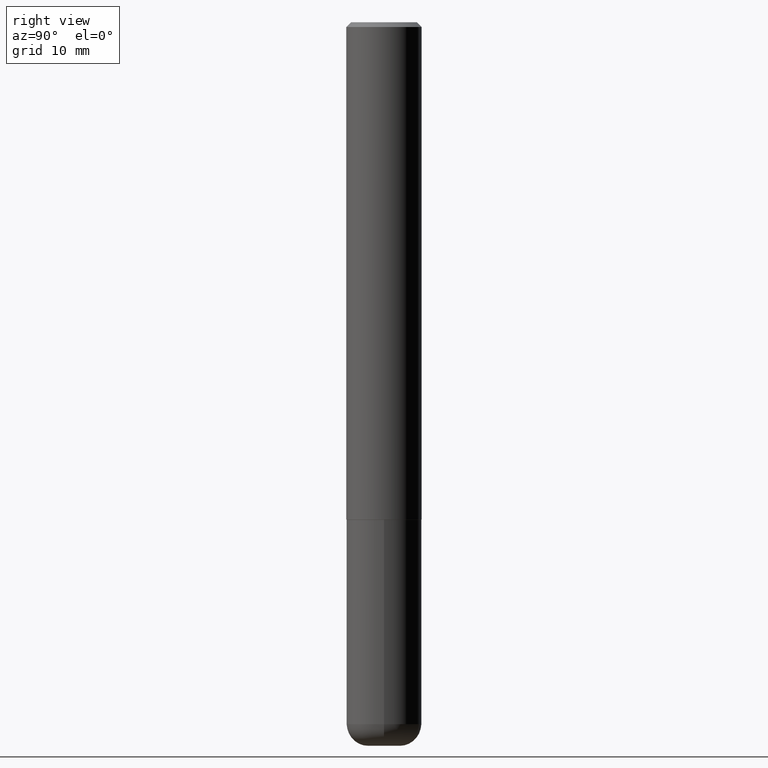
[diagram: clean part render]
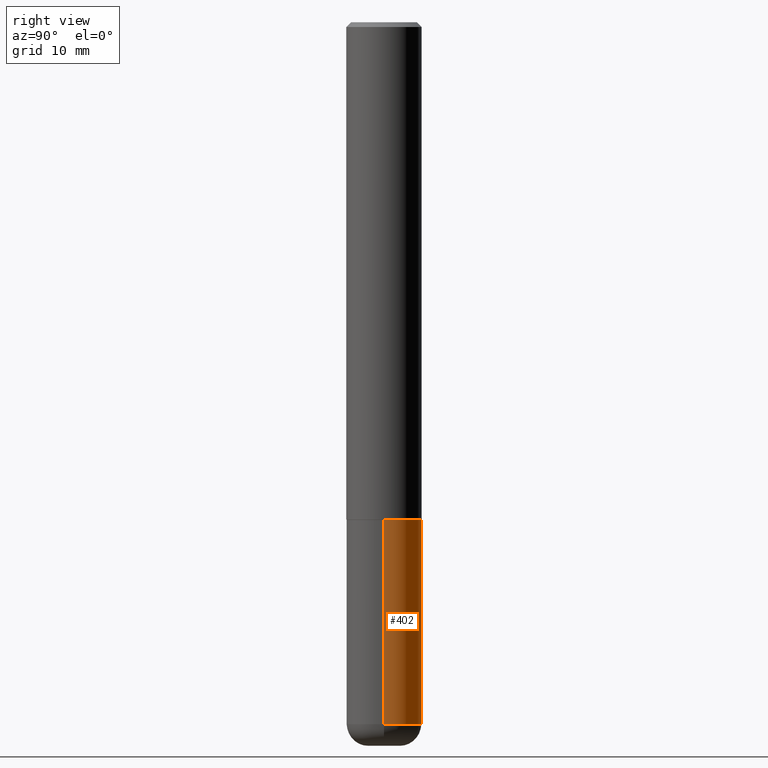
[diagram: same view with one face highlighted and labeled with its STEP entity id]
A machine part, right view. The second image highlights one B-rep face of the part: STEP entity #402.
In plain terms, the highlighted cylindrical surface (partial cylindrical patch) has radius 3.9688 mm, axis along (-0, 0, 1).
Its self-contained STEP definition (entity closure, byte-faithful):
#16 = DIRECTION ( 'NONE',  ( 1.000000000000000000, -6.982962677686269077E-15, 0.000000000000000000 ) ) ;
#17 = LINE ( 'NONE', #365, #217 ) ;
#50 = AXIS2_PLACEMENT_3D ( 'NONE', #212, #321, #361 ) ;
#51 = CARTESIAN_POINT ( 'NONE',  ( 0.1562499999999998335, -1.125129861442203147E-14, -2.910000000000000586 ) ) ;
#55 = CARTESIAN_POINT ( 'NONE',  ( 5.043779412756844791E-29, -7.201180261363988578E-15, -2.062500000000000000 ) ) ;
#60 = LINE ( 'NONE', #268, #128 ) ;
#63 = EDGE_CURVE ( 'NONE', #366, #106, #17, .T. ) ;
#65 = ORIENTED_EDGE ( 'NONE', *, *, #63, .F. ) ;
#68 = AXIS2_PLACEMENT_3D ( 'NONE', #55, #171, #16 ) ;
#90 = VERTEX_POINT ( 'NONE', #122 ) ;
#106 = VERTEX_POINT ( 'NONE', #146 ) ;
#122 = CARTESIAN_POINT ( 'NONE',  ( -0.1562499999999998335, -9.049987671408398127E-15, -2.910000000000000586 ) ) ;
#128 = VECTOR ( 'NONE', #292, 39.37007874015748143 ) ;
#146 = CARTESIAN_POINT ( 'NONE',  ( 0.1562500000000000000, -8.292268179752468540E-15, -2.062500000000000000 ) ) ;
#165 = AXIS2_PLACEMENT_3D ( 'NONE', #244, #372, #364 ) ;
#169 = EDGE_CURVE ( 'NONE', #366, #90, #409, .T. ) ;
#171 = DIRECTION ( 'NONE',  ( -2.445468806185136597E-29, 3.491481338843145583E-15, 1.000000000000000000 ) ) ;
#212 = CARTESIAN_POINT ( 'NONE',  ( 7.116314225998749245E-29, -1.016021069603355467E-14, -2.910000000000000586 ) ) ;
#217 = VECTOR ( 'NONE', #295, 39.37007874015748143 ) ;
#244 = CARTESIAN_POINT ( 'NONE',  ( 0.000000000000000000, 0.000000000000000000, 0.000000000000000000 ) ) ;
#267 = ORIENTED_EDGE ( 'NONE', *, *, #356, .T. ) ;
#268 = CARTESIAN_POINT ( 'NONE',  ( -0.1562500000000000000, 1.110223024625156540E-15, -7.685836078523291160E-30 ) ) ;
#271 = ORIENTED_EDGE ( 'NONE', *, *, #411, .F. ) ;
#292 = DIRECTION ( 'NONE',  ( -2.445468806185136877E-29, 3.491481338843145188E-15, 1.000000000000000000 ) ) ;
#295 = DIRECTION ( 'NONE',  ( -2.445468806185136877E-29, 3.491481338843145188E-15, 1.000000000000000000 ) ) ;
#304 = VERTEX_POINT ( 'NONE', #414 ) ;
#321 = DIRECTION ( 'NONE',  ( -2.445468806185136597E-29, 3.491481338843145583E-15, 1.000000000000000000 ) ) ;
#326 = CIRCLE ( 'NONE', #68, 0.1562500000000000000 ) ;
#331 = FACE_OUTER_BOUND ( 'NONE', #415, .T. ) ;
#338 = ORIENTED_EDGE ( 'NONE', *, *, #169, .T. ) ;
#356 = EDGE_CURVE ( 'NONE', #90, #304, #60, .T. ) ;
#361 = DIRECTION ( 'NONE',  ( 1.000000000000000000, -6.982962677686262766E-15, 0.000000000000000000 ) ) ;
#364 = DIRECTION ( 'NONE',  ( 1.000000000000000000, -6.982962677686266711E-15, 4.876176775795936353E-29 ) ) ;
#365 = CARTESIAN_POINT ( 'NONE',  ( 0.1562500000000000000, -1.091087918388479174E-15, 7.619026212181150377E-30 ) ) ;
#366 = VERTEX_POINT ( 'NONE', #51 ) ;
#372 = DIRECTION ( 'NONE',  ( -2.445468806185136597E-29, 3.491481338843145583E-15, 1.000000000000000000 ) ) ;
#396 = CYLINDRICAL_SURFACE ( 'NONE', #165, 0.1562500000000000000 ) ;
#402 = ADVANCED_FACE ( 'NONE', ( #331 ), #396, .T. ) ;
#409 = CIRCLE ( 'NONE', #50, 0.1562500000000000000 ) ;
#411 = EDGE_CURVE ( 'NONE', #106, #304, #326, .T. ) ;
#414 = CARTESIAN_POINT ( 'NONE',  ( -0.1562500000000000000, -7.570472454073614293E-15, -2.062500000000000000 ) ) ;
#415 = EDGE_LOOP ( 'NONE', ( #338, #267, #271, #65 ) ) ;